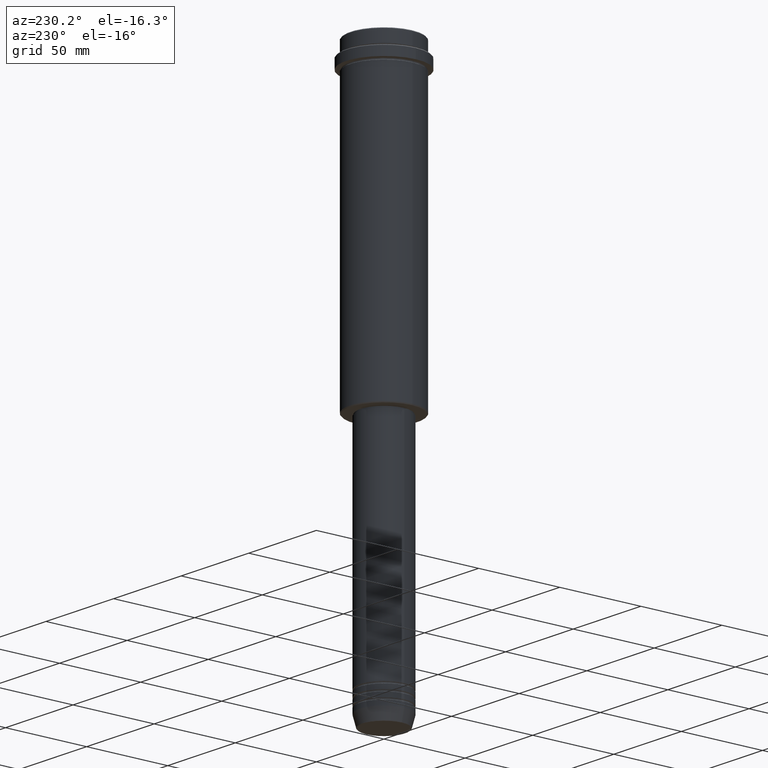
[diagram: clean part render]
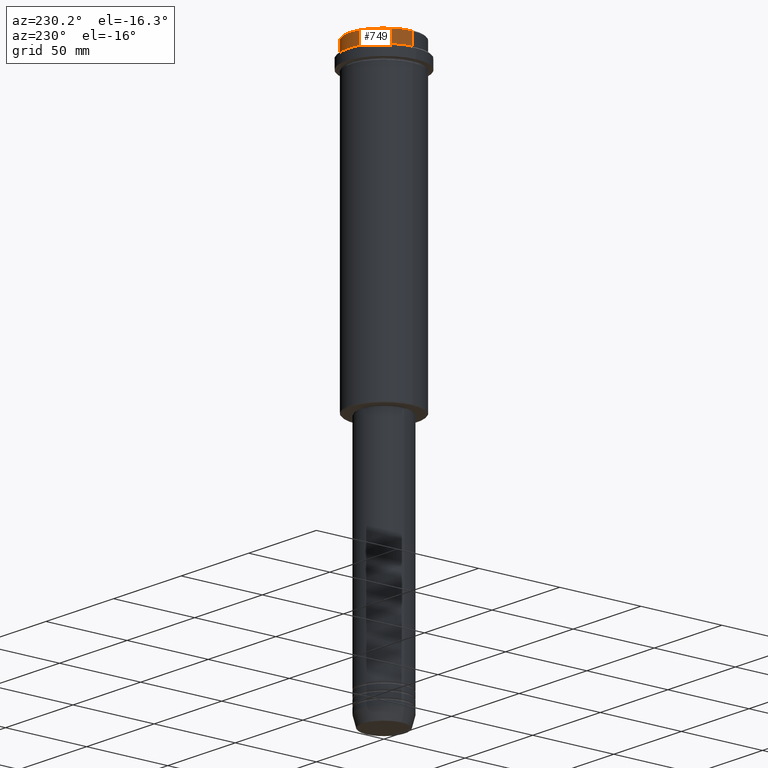
[diagram: same view with one face highlighted and labeled with its STEP entity id]
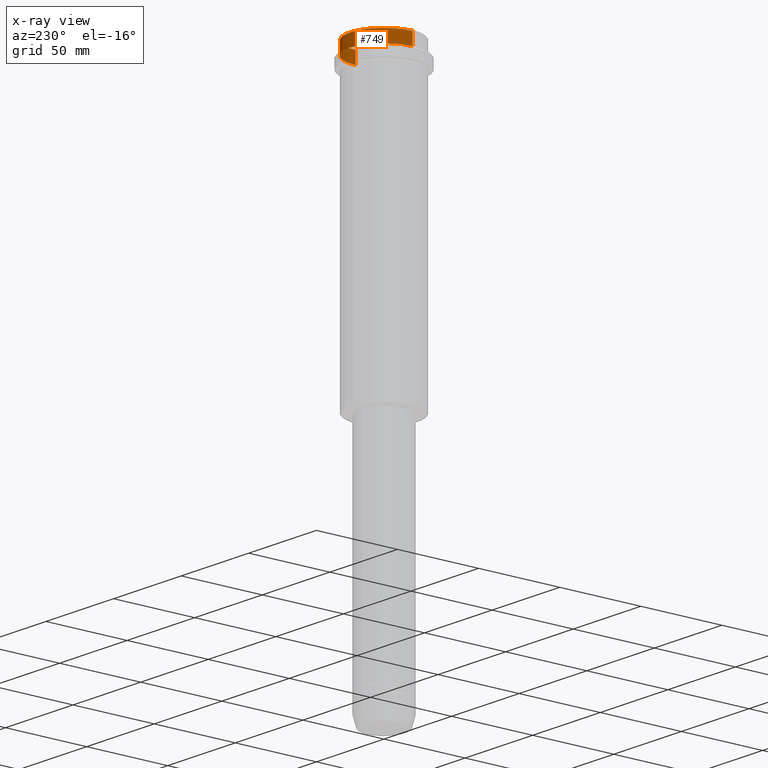
[diagram: x-ray of the same camera — body ghosted, the highlighted face saturated]
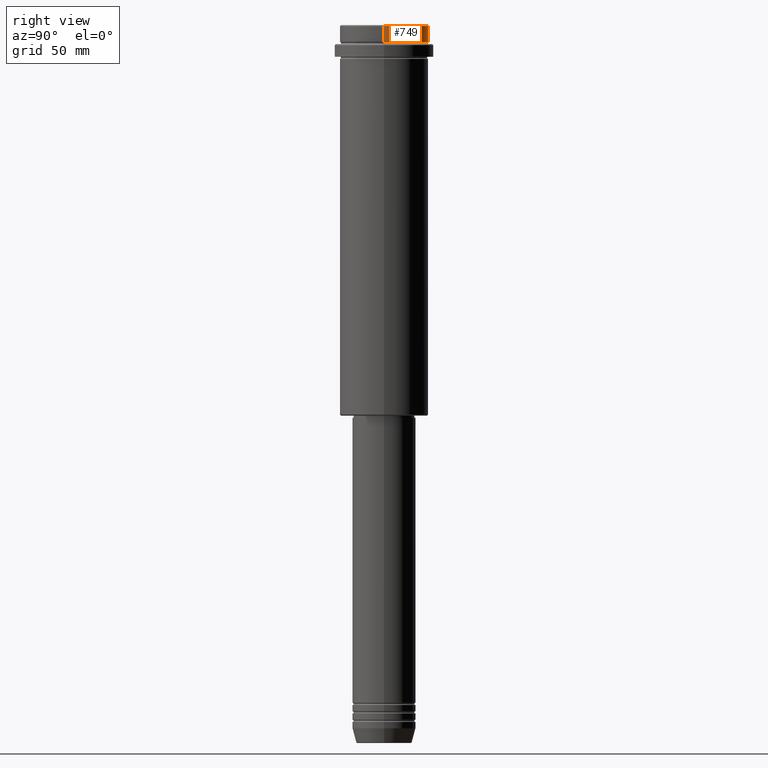
[diagram: same view with one face highlighted and labeled with its STEP entity id]
A machine part, auxiliary view. The second image highlights one B-rep face of the part: STEP entity #749.
The next image is the same camera in x-ray: the body ghosted, the highlighted face saturated — about 1% of this face is hidden behind the body in this view.
A second angle (right view) of the same face is appended — the face is thin or edge-on in the first view.
In plain terms, the highlighted cylindrical surface (partial cylindrical patch) has radius 21 mm, axis along (-0, -0, 1).
Its self-contained STEP definition (entity closure, byte-faithful):
#18 = DIRECTION ( 'NONE',  ( 1.000000000000000000, 0.000000000000000000, 0.000000000000000000 ) ) ;
#58 = DIRECTION ( 'NONE',  ( 1.000000000000000000, 0.000000000000000000, 0.000000000000000000 ) ) ;
#94 = CARTESIAN_POINT ( 'NONE',  ( 0.000000000000000000, 0.000000000000000000, 0.000000000000000000 ) ) ;
#119 = ORIENTED_EDGE ( 'NONE', *, *, #603, .T. ) ;
#162 = ORIENTED_EDGE ( 'NONE', *, *, #1103, .T. ) ;
#204 = VERTEX_POINT ( 'NONE', #256 ) ;
#213 = CARTESIAN_POINT ( 'NONE',  ( 0.000000000000000000, 0.000000000000000000, -0.5000000000000628386 ) ) ;
#220 = CARTESIAN_POINT ( 'NONE',  ( -20.99999999999999645, 2.571758278209441267E-15, -7.999999999999998224 ) ) ;
#256 = CARTESIAN_POINT ( 'NONE',  ( 20.99999999999999645, 0.000000000000000000, -7.999999999999998224 ) ) ;
#300 = CARTESIAN_POINT ( 'NONE',  ( 0.000000000000000000, 0.000000000000000000, -7.999999999999998224 ) ) ;
#321 = EDGE_CURVE ( 'NONE', #410, #426, #946, .T. ) ;
#328 = DIRECTION ( 'NONE',  ( 1.000000000000000000, 0.000000000000000000, 0.000000000000000000 ) ) ;
#410 = VERTEX_POINT ( 'NONE', #437 ) ;
#426 = VERTEX_POINT ( 'NONE', #924 ) ;
#437 = CARTESIAN_POINT ( 'NONE',  ( -20.99999999999999645, 2.571758278209441267E-15, -0.5000000000000628386 ) ) ;
#549 = FACE_OUTER_BOUND ( 'NONE', #1007, .T. ) ;
#603 = EDGE_CURVE ( 'NONE', #204, #709, #1061, .T. ) ;
#626 = AXIS2_PLACEMENT_3D ( 'NONE', #213, #866, #18 ) ;
#703 = DIRECTION ( 'NONE',  ( -0.000000000000000000, -0.000000000000000000, 1.000000000000000000 ) ) ;
#709 = VERTEX_POINT ( 'NONE', #220 ) ;
#721 = AXIS2_PLACEMENT_3D ( 'NONE', #300, #950, #58 ) ;
#728 = DIRECTION ( 'NONE',  ( -0.000000000000000000, -0.000000000000000000, 1.000000000000000000 ) ) ;
#749 = ADVANCED_FACE ( 'NONE', ( #549 ), #962, .T. ) ;
#845 = EDGE_CURVE ( 'NONE', #204, #426, #1355, .T. ) ;
#858 = AXIS2_PLACEMENT_3D ( 'NONE', #94, #968, #328 ) ;
#866 = DIRECTION ( 'NONE',  ( 0.000000000000000000, 0.000000000000000000, -1.000000000000000000 ) ) ;
#924 = CARTESIAN_POINT ( 'NONE',  ( 20.99999999999999645, 0.000000000000000000, -0.5000000000000628386 ) ) ;
#946 = CIRCLE ( 'NONE', #626, 20.99999999999999645 ) ;
#950 = DIRECTION ( 'NONE',  ( -0.000000000000000000, -0.000000000000000000, 1.000000000000000000 ) ) ;
#959 = CARTESIAN_POINT ( 'NONE',  ( -20.99999999999999645, 2.571758278209441267E-15, 0.000000000000000000 ) ) ;
#962 = CYLINDRICAL_SURFACE ( 'NONE', #858, 20.99999999999999645 ) ;
#966 = ORIENTED_EDGE ( 'NONE', *, *, #845, .F. ) ;
#968 = DIRECTION ( 'NONE',  ( -0.000000000000000000, -0.000000000000000000, 1.000000000000000000 ) ) ;
#1007 = EDGE_LOOP ( 'NONE', ( #119, #162, #1270, #966 ) ) ;
#1061 = CIRCLE ( 'NONE', #721, 20.99999999999999645 ) ;
#1103 = EDGE_CURVE ( 'NONE', #709, #410, #1172, .T. ) ;
#1106 = CARTESIAN_POINT ( 'NONE',  ( 20.99999999999999645, 0.000000000000000000, 0.000000000000000000 ) ) ;
#1172 = LINE ( 'NONE', #959, #1253 ) ;
#1200 = VECTOR ( 'NONE', #703, 1000.000000000000000 ) ;
#1253 = VECTOR ( 'NONE', #728, 1000.000000000000000 ) ;
#1270 = ORIENTED_EDGE ( 'NONE', *, *, #321, .T. ) ;
#1355 = LINE ( 'NONE', #1106, #1200 ) ;